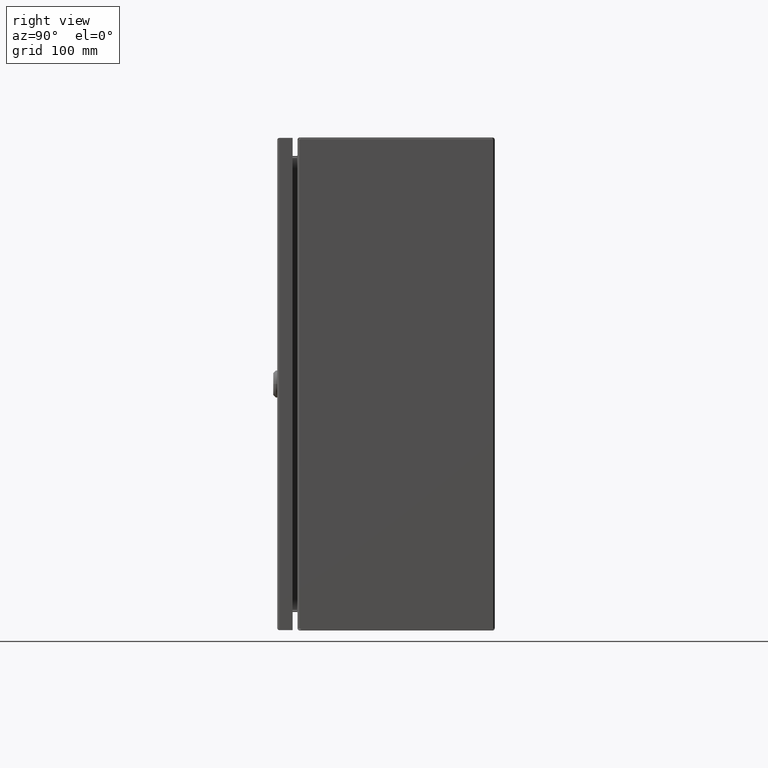
[diagram: clean part render]
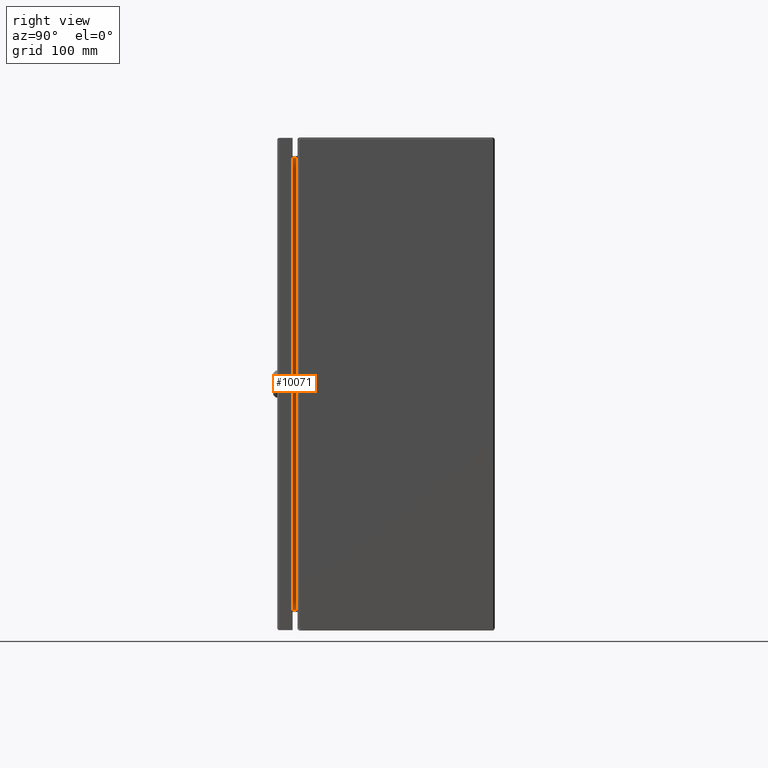
[diagram: same view with one face highlighted and labeled with its STEP entity id]
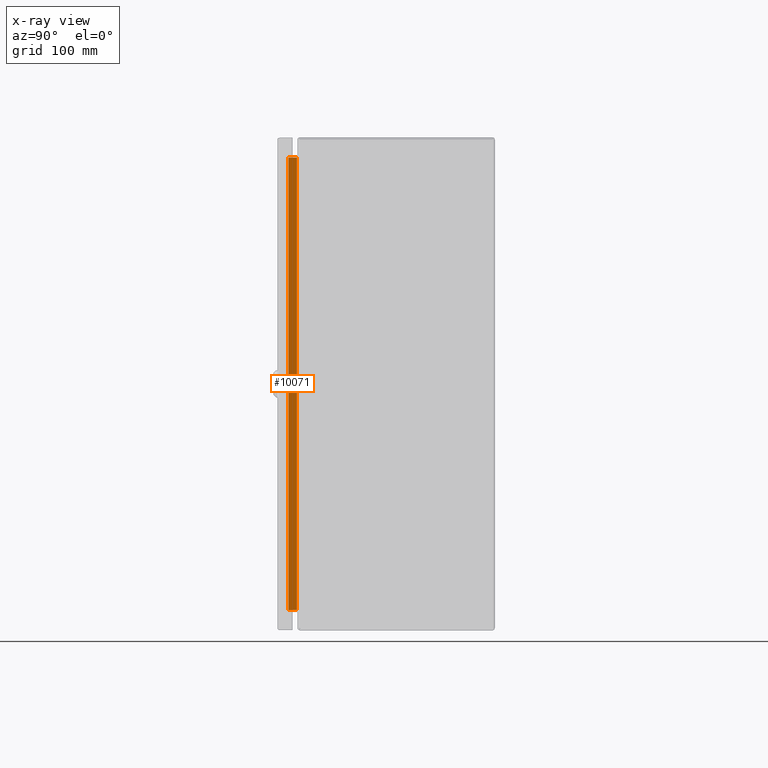
[diagram: x-ray of the same camera — body ghosted, the highlighted face saturated]
A machine part, right view. The second image highlights one B-rep face of the part: STEP entity #10071.
The next image is the same camera in x-ray: the body ghosted, the highlighted face saturated — about 0% of this face is hidden behind the body in this view.
In plain terms, the highlighted planar face has unit normal (-1, -0, 0).
Its self-contained STEP definition (entity closure, byte-faithful):
#1449 = VECTOR ( 'NONE', #9546, 39.37007874015748143 ) ;
#3310 = EDGE_CURVE ( 'NONE', #16713, #19644, #24914, .T. ) ;
#4771 = ORIENTED_EDGE ( 'NONE', *, *, #27416, .T. ) ;
#5043 = EDGE_CURVE ( 'NONE', #9634, #19644, #26728, .T. ) ;
#6843 = CARTESIAN_POINT ( 'NONE',  ( 9.250999999999999446, -8.363201537686062892, -69.44150000000000489 ) ) ;
#8314 = LINE ( 'NONE', #19434, #10389 ) ;
#8568 = ORIENTED_EDGE ( 'NONE', *, *, #5043, .F. ) ;
#8750 = VECTOR ( 'NONE', #29951, 39.37007874015748143 ) ;
#8794 = LINE ( 'NONE', #26944, #1449 ) ;
#9068 = CARTESIAN_POINT ( 'NONE',  ( 9.250999999999999446, -8.028999999999999915, -9.251688819766535232 ) ) ;
#9546 = DIRECTION ( 'NONE',  ( -0.0000000000000000000, 0.9756199816001848157, 0.2194667434999089950 ) ) ;
#9634 = VERTEX_POINT ( 'NONE', #35355 ) ;
#9943 = VECTOR ( 'NONE', #10732, 39.37007874015748143 ) ;
#10071 = ADVANCED_FACE ( 'NONE', ( #28689 ), #31909, .F. ) ;
#10389 = VECTOR ( 'NONE', #28390, 39.37007874015748143 ) ;
#10732 = DIRECTION ( 'NONE',  ( -0.0000000000000000000, -0.9756199816001847047, 0.2194667434999099387 ) ) ;
#11467 = CARTESIAN_POINT ( 'NONE',  ( 9.251000000000020762, -8.363201537686064668, 9.184068737050465003 ) ) ;
#11502 = CARTESIAN_POINT ( 'NONE',  ( 9.250999999999999446, -7.942999999999999616, -69.44150000000000489 ) ) ;
#12129 = VERTEX_POINT ( 'NONE', #32016 ) ;
#13765 = VERTEX_POINT ( 'NONE', #29517 ) ;
#14020 = EDGE_LOOP ( 'NONE', ( #18522, #24487, #8568, #4771, #30344, #25215 ) ) ;
#14192 = DIRECTION ( 'NONE',  ( -1.000000000000000000, -3.484770713257609976E-16, 1.573611165464029883E-17 ) ) ;
#15834 = DIRECTION ( 'NONE',  ( -3.484770713257609976E-16, 1.000000000000000000, -0.0000000000000000000 ) ) ;
#15999 = VECTOR ( 'NONE', #23629, 39.37007874015748143 ) ;
#16713 = VERTEX_POINT ( 'NONE', #23779 ) ;
#17122 = VECTOR ( 'NONE', #15834, 39.37007874015748143 ) ;
#17628 = DIRECTION ( 'NONE',  ( 3.484770713257609976E-16, -1.000000000000000000, 0.0000000000000000000 ) ) ;
#18522 = ORIENTED_EDGE ( 'NONE', *, *, #19884, .F. ) ;
#19434 = CARTESIAN_POINT ( 'NONE',  ( 9.251000000000001222, -7.942999999999999616, -9.182888644601380435 ) ) ;
#19644 = VERTEX_POINT ( 'NONE', #11467 ) ;
#19884 = EDGE_CURVE ( 'NONE', #16713, #28148, #31061, .T. ) ;
#20193 = CARTESIAN_POINT ( 'NONE',  ( 9.250999999999999446, -8.028999999999999915, 9.182888644601378658 ) ) ;
#23194 = EDGE_CURVE ( 'NONE', #12129, #13765, #8314, .T. ) ;
#23629 = DIRECTION ( 'NONE',  ( -8.664017959936819433E-17, 1.509006723192220079E-31, 1.000000000000000000 ) ) ;
#23779 = CARTESIAN_POINT ( 'NONE',  ( 9.251000000000013657, -8.357955541162441548, 9.182888644601380435 ) ) ;
#24373 = EDGE_CURVE ( 'NONE', #12129, #28148, #29326, .T. ) ;
#24487 = ORIENTED_EDGE ( 'NONE', *, *, #3310, .T. ) ;
#24914 = LINE ( 'NONE', #33814, #9943 ) ;
#25215 = ORIENTED_EDGE ( 'NONE', *, *, #24373, .T. ) ;
#26728 = LINE ( 'NONE', #6843, #8750 ) ;
#26944 = CARTESIAN_POINT ( 'NONE',  ( 9.250999999999997669, -8.357955541162402469, -9.182888644601373329 ) ) ;
#27416 = EDGE_CURVE ( 'NONE', #9634, #13765, #8794, .T. ) ;
#28148 = VERTEX_POINT ( 'NONE', #20193 ) ;
#28390 = DIRECTION ( 'NONE',  ( 3.484770713257609976E-16, -1.000000000000000000, 0.0000000000000000000 ) ) ;
#28689 = FACE_OUTER_BOUND ( 'NONE', #14020, .T. ) ;
#29326 = LINE ( 'NONE', #9068, #15999 ) ;
#29517 = CARTESIAN_POINT ( 'NONE',  ( 9.250999999999999446, -8.357955541162439772, -9.182888644601380435 ) ) ;
#29951 = DIRECTION ( 'NONE',  ( 1.573611165464029883E-17, 5.483674103464226388E-33, 1.000000000000000000 ) ) ;
#30344 = ORIENTED_EDGE ( 'NONE', *, *, #23194, .F. ) ;
#30919 = AXIS2_PLACEMENT_3D ( 'NONE', #11502, #14192, #17628 ) ;
#31061 = LINE ( 'NONE', #36199, #17122 ) ;
#31909 = PLANE ( 'NONE',  #30919 ) ;
#32016 = CARTESIAN_POINT ( 'NONE',  ( 9.250999999999999446, -8.028999999999999915, -9.182888644601378658 ) ) ;
#33814 = CARTESIAN_POINT ( 'NONE',  ( 9.251000000000042078, -8.357955541162402469, 9.182888644601375105 ) ) ;
#35355 = CARTESIAN_POINT ( 'NONE',  ( 9.250999999999999446, -8.363201537686062892, -9.184068737050463227 ) ) ;
#36199 = CARTESIAN_POINT ( 'NONE',  ( 9.251000000000001222, -7.942999999999999616, 9.182888644601380435 ) ) ;